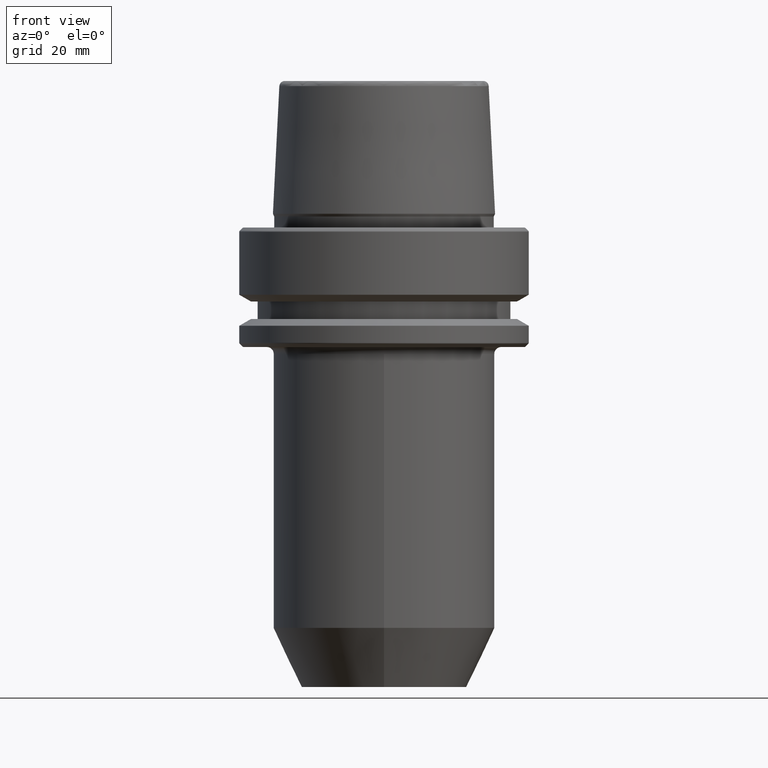
[diagram: clean part render]
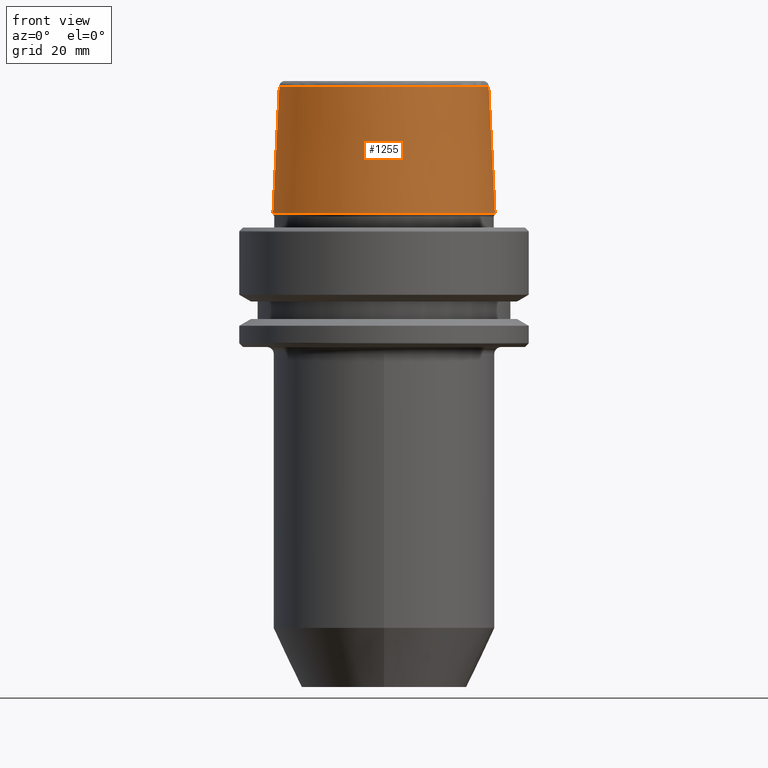
[diagram: same view with one face highlighted and labeled with its STEP entity id]
A machine part, front view. The second image highlights one B-rep face of the part: STEP entity #1255.
In plain terms, the highlighted conical surface has half-angle 2.868 deg.
Its self-contained STEP definition (entity closure, byte-faithful):
#78 = DIRECTION ( 'NONE',  ( -1.000000000000000000, 0.0000000000000000000, 0.0000000000000000000 ) ) ;
#115 = DIRECTION ( 'NONE',  ( -0.0000000000000000000, -0.0000000000000000000, 1.000000000000000000 ) ) ;
#116 = AXIS2_PLACEMENT_3D ( 'NONE', #232, #926, #323 ) ;
#182 = DIRECTION ( 'NONE',  ( 0.0000000000000000000, 0.0000000000000000000, -1.000000000000000000 ) ) ;
#232 = CARTESIAN_POINT ( 'NONE',  ( 0.0000000000000000000, 0.0000000000000000000, 3.000000000000002700 ) ) ;
#251 = CARTESIAN_POINT ( 'NONE',  ( -24.17032625081241900, 0.0000000000000000000, 3.000000000000002700 ) ) ;
#265 = CARTESIAN_POINT ( 'NONE',  ( 0.0000000000000000000, 0.0000000000000000000, 3.000000000000002700 ) ) ;
#273 = FACE_OUTER_BOUND ( 'NONE', #1270, .T. ) ;
#299 = ORIENTED_EDGE ( 'NONE', *, *, #512, .T. ) ;
#308 = ORIENTED_EDGE ( 'NONE', *, *, #892, .F. ) ;
#323 = DIRECTION ( 'NONE',  ( 1.000000000000000000, 0.0000000000000000000, 0.0000000000000000000 ) ) ;
#327 = VECTOR ( 'NONE', #826, 1000.000000000000200 ) ;
#395 = VECTOR ( 'NONE', #1107, 1000.000000000000200 ) ;
#512 = EDGE_CURVE ( 'NONE', #1074, #627, #598, .T. ) ;
#556 = EDGE_CURVE ( 'NONE', #627, #957, #1216, .T. ) ;
#598 = LINE ( 'NONE', #251, #327 ) ;
#627 = VERTEX_POINT ( 'NONE', #632 ) ;
#632 = CARTESIAN_POINT ( 'NONE',  ( -24.17032625081241900, 2.960011267740467600E-015, 3.000000000000002700 ) ) ;
#669 = LINE ( 'NONE', #817, #395 ) ;
#698 = AXIS2_PLACEMENT_3D ( 'NONE', #265, #182, #78 ) ;
#710 = CARTESIAN_POINT ( 'NONE',  ( 0.0000000000000000000, 0.0000000000000000000, 30.76004333261571900 ) ) ;
#802 = DIRECTION ( 'NONE',  ( 1.000000000000000000, 0.0000000000000000000, 0.0000000000000000000 ) ) ;
#817 = CARTESIAN_POINT ( 'NONE',  ( 24.17032625081241900, 2.960011267740467600E-015, 3.000000000000002700 ) ) ;
#822 = ORIENTED_EDGE ( 'NONE', *, *, #556, .T. ) ;
#826 = DIRECTION ( 'NONE',  ( -0.05003611051310812000, 0.0000000000000000000, -0.9987474093306675200 ) ) ;
#832 = CARTESIAN_POINT ( 'NONE',  ( -22.77957961851797100, 0.0000000000000000000, 30.76004333261571900 ) ) ;
#842 = CIRCLE ( 'NONE', #1161, 22.77957961851797100 ) ;
#872 = VERTEX_POINT ( 'NONE', #929 ) ;
#892 = EDGE_CURVE ( 'NONE', #1074, #872, #842, .T. ) ;
#926 = DIRECTION ( 'NONE',  ( -0.0000000000000000000, -0.0000000000000000000, 1.000000000000000000 ) ) ;
#929 = CARTESIAN_POINT ( 'NONE',  ( 22.77957961851797100, 2.874852597157249900E-015, 30.76004333261571900 ) ) ;
#957 = VERTEX_POINT ( 'NONE', #1144 ) ;
#984 = CONICAL_SURFACE ( 'NONE', #698, 24.17032625081241900, 0.05005701257456005000 ) ;
#1074 = VERTEX_POINT ( 'NONE', #832 ) ;
#1100 = ORIENTED_EDGE ( 'NONE', *, *, #1134, .F. ) ;
#1107 = DIRECTION ( 'NONE',  ( 0.05003611051310812000, 6.127656258166108900E-018, -0.9987474093306675200 ) ) ;
#1134 = EDGE_CURVE ( 'NONE', #872, #957, #669, .T. ) ;
#1144 = CARTESIAN_POINT ( 'NONE',  ( 24.17032625081241900, 0.0000000000000000000, 3.000000000000002700 ) ) ;
#1161 = AXIS2_PLACEMENT_3D ( 'NONE', #710, #115, #802 ) ;
#1216 = CIRCLE ( 'NONE', #116, 24.17032625081241900 ) ;
#1255 = ADVANCED_FACE ( 'NONE', ( #273 ), #984, .T. ) ;
#1270 = EDGE_LOOP ( 'NONE', ( #1100, #308, #299, #822 ) ) ;